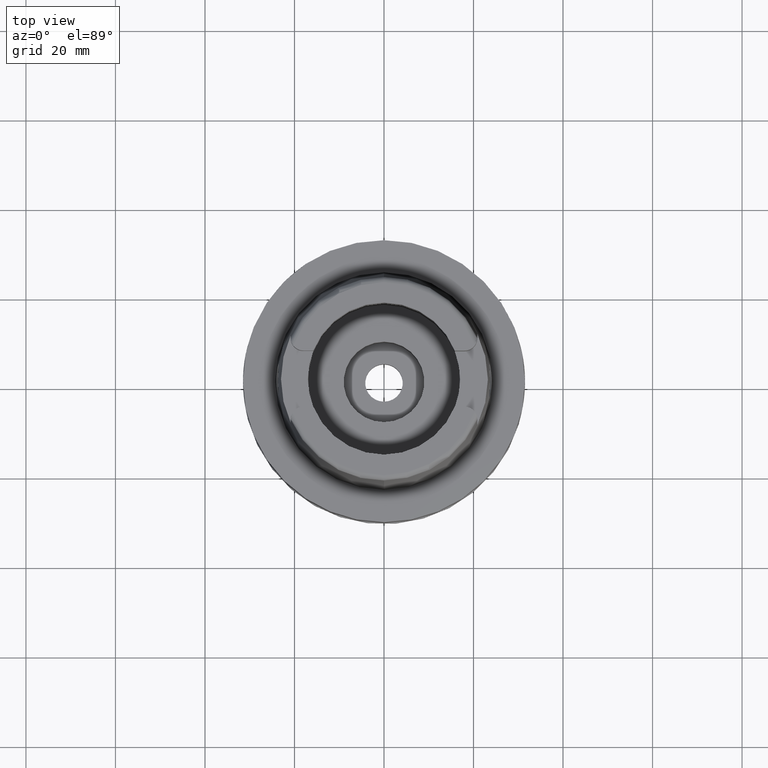
[diagram: clean part render]
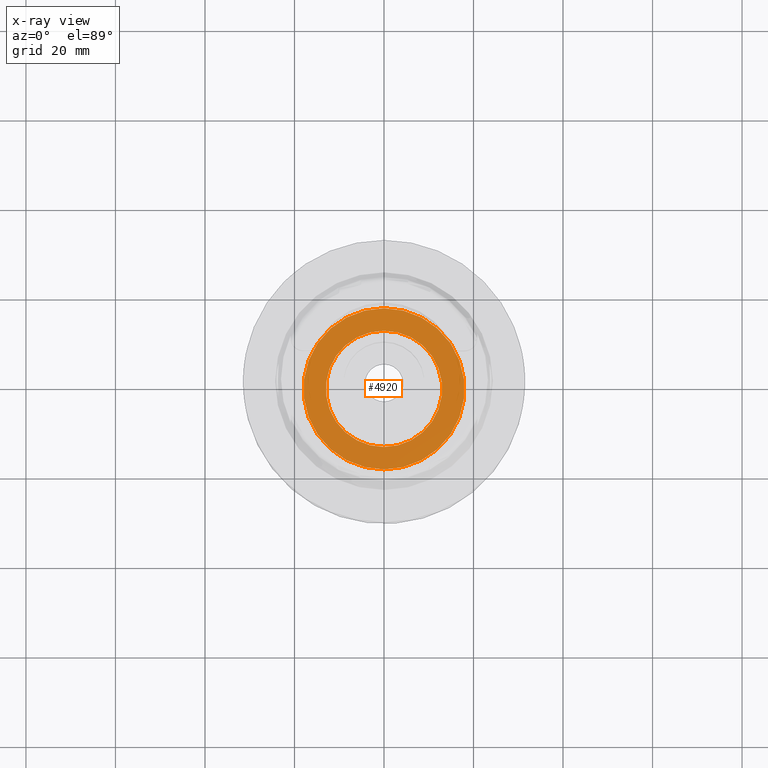
[diagram: x-ray — body ghosted, one internal face saturated and labeled with its STEP entity id]
A machine part, top view, then the same camera in x-ray: the body is ghosted and one INTERNAL B-rep face — a face not visible from any outside direction — is saturated and labeled: STEP entity #4920.
In plain terms, the highlighted planar face has unit normal (0, 0, -1).
Its self-contained STEP definition (entity closure, byte-faithful):
#6 = DIRECTION ( 'NONE',  ( 0.0000000000000000000, -1.000000000000000000, 0.0000000000000000000 ) ) ;
#219 = AXIS2_PLACEMENT_3D ( 'NONE', #3308, #6072, #6 ) ;
#539 = DIRECTION ( 'NONE',  ( 0.0000000000000000000, 0.0000000000000000000, 1.000000000000000000 ) ) ;
#628 = CARTESIAN_POINT ( 'NONE',  ( 0.0000000000000000000, 18.00000000000000000, -10.80000000000000071 ) ) ;
#805 = AXIS2_PLACEMENT_3D ( 'NONE', #1597, #539, #1414 ) ;
#808 = DIRECTION ( 'NONE',  ( 0.0000000000000000000, -1.000000000000000000, 0.0000000000000000000 ) ) ;
#939 = EDGE_CURVE ( 'NONE', #4182, #5873, #2901, .T. ) ;
#955 = DIRECTION ( 'NONE',  ( 0.0000000000000000000, 1.000000000000000000, 0.0000000000000000000 ) ) ;
#1355 = FACE_OUTER_BOUND ( 'NONE', #3714, .T. ) ;
#1414 = DIRECTION ( 'NONE',  ( 0.0000000000000000000, 1.000000000000000000, 0.0000000000000000000 ) ) ;
#1555 = CARTESIAN_POINT ( 'NONE',  ( 0.0000000000000000000, -18.00000000000000000, -10.80000000000000071 ) ) ;
#1597 = CARTESIAN_POINT ( 'NONE',  ( 0.0000000000000000000, 0.0000000000000000000, -10.80000000000000071 ) ) ;
#1723 = CARTESIAN_POINT ( 'NONE',  ( 0.0000000000000000000, 0.0000000000000000000, -10.80000000000000071 ) ) ;
#1759 = FACE_BOUND ( 'NONE', #5627, .T. ) ;
#1775 = EDGE_CURVE ( 'NONE', #3387, #2665, #3010, .T. ) ;
#2256 = CARTESIAN_POINT ( 'NONE',  ( 0.0000000000000000000, -13.00000000000000000, -10.80000000000000071 ) ) ;
#2337 = PLANE ( 'NONE',  #219 ) ;
#2450 = DIRECTION ( 'NONE',  ( 0.0000000000000000000, 0.0000000000000000000, -1.000000000000000000 ) ) ;
#2616 = ORIENTED_EDGE ( 'NONE', *, *, #3606, .F. ) ;
#2665 = VERTEX_POINT ( 'NONE', #5525 ) ;
#2901 = CIRCLE ( 'NONE', #4605, 18.00000000000000000 ) ;
#3009 = CARTESIAN_POINT ( 'NONE',  ( 0.0000000000000000000, 0.0000000000000000000, -10.80000000000000071 ) ) ;
#3010 = CIRCLE ( 'NONE', #4113, 13.00000000000000000 ) ;
#3308 = CARTESIAN_POINT ( 'NONE',  ( 0.0000000000000000000, 0.0000000000000000000, -10.80000000000000071 ) ) ;
#3387 = VERTEX_POINT ( 'NONE', #2256 ) ;
#3466 = CIRCLE ( 'NONE', #805, 13.00000000000000000 ) ;
#3606 = EDGE_CURVE ( 'NONE', #5873, #4182, #5312, .T. ) ;
#3647 = EDGE_CURVE ( 'NONE', #2665, #3387, #3466, .T. ) ;
#3714 = EDGE_LOOP ( 'NONE', ( #2616, #4641 ) ) ;
#3766 = DIRECTION ( 'NONE',  ( 0.0000000000000000000, 0.0000000000000000000, -1.000000000000000000 ) ) ;
#4113 = AXIS2_PLACEMENT_3D ( 'NONE', #1723, #5102, #808 ) ;
#4182 = VERTEX_POINT ( 'NONE', #1555 ) ;
#4596 = ORIENTED_EDGE ( 'NONE', *, *, #1775, .F. ) ;
#4605 = AXIS2_PLACEMENT_3D ( 'NONE', #4875, #2450, #5741 ) ;
#4627 = AXIS2_PLACEMENT_3D ( 'NONE', #3009, #3766, #955 ) ;
#4641 = ORIENTED_EDGE ( 'NONE', *, *, #939, .F. ) ;
#4875 = CARTESIAN_POINT ( 'NONE',  ( 0.0000000000000000000, 0.0000000000000000000, -10.80000000000000071 ) ) ;
#4920 = ADVANCED_FACE ( 'NONE', ( #1355, #1759 ), #2337, .F. ) ;
#5102 = DIRECTION ( 'NONE',  ( 0.0000000000000000000, 0.0000000000000000000, 1.000000000000000000 ) ) ;
#5275 = ORIENTED_EDGE ( 'NONE', *, *, #3647, .F. ) ;
#5312 = CIRCLE ( 'NONE', #4627, 18.00000000000000000 ) ;
#5525 = CARTESIAN_POINT ( 'NONE',  ( 0.0000000000000000000, 13.00000000000000000, -10.80000000000000071 ) ) ;
#5627 = EDGE_LOOP ( 'NONE', ( #5275, #4596 ) ) ;
#5741 = DIRECTION ( 'NONE',  ( 0.0000000000000000000, -1.000000000000000000, 0.0000000000000000000 ) ) ;
#5873 = VERTEX_POINT ( 'NONE', #628 ) ;
#6072 = DIRECTION ( 'NONE',  ( 0.0000000000000000000, 0.0000000000000000000, -1.000000000000000000 ) ) ;